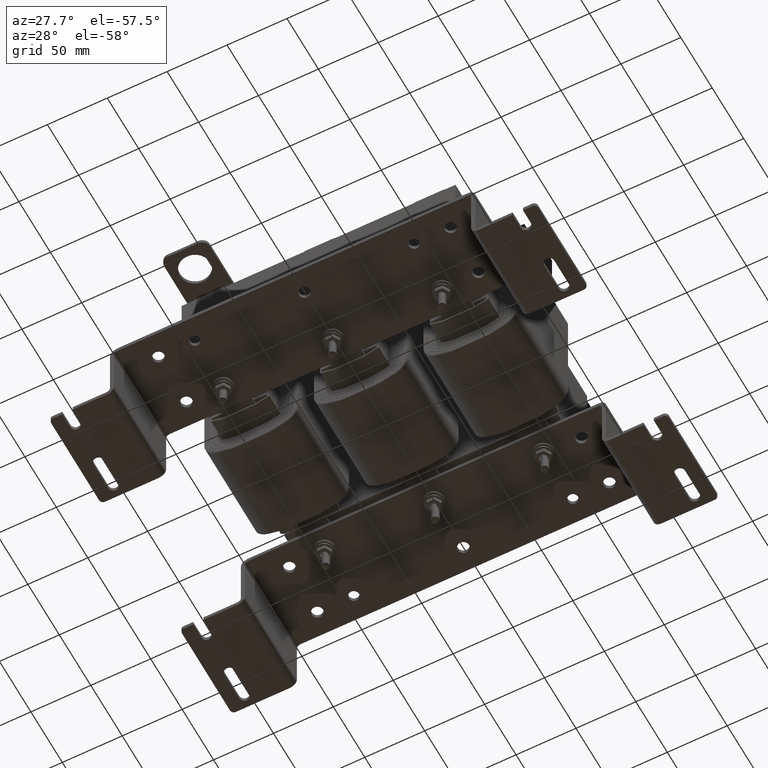
[diagram: clean part render]
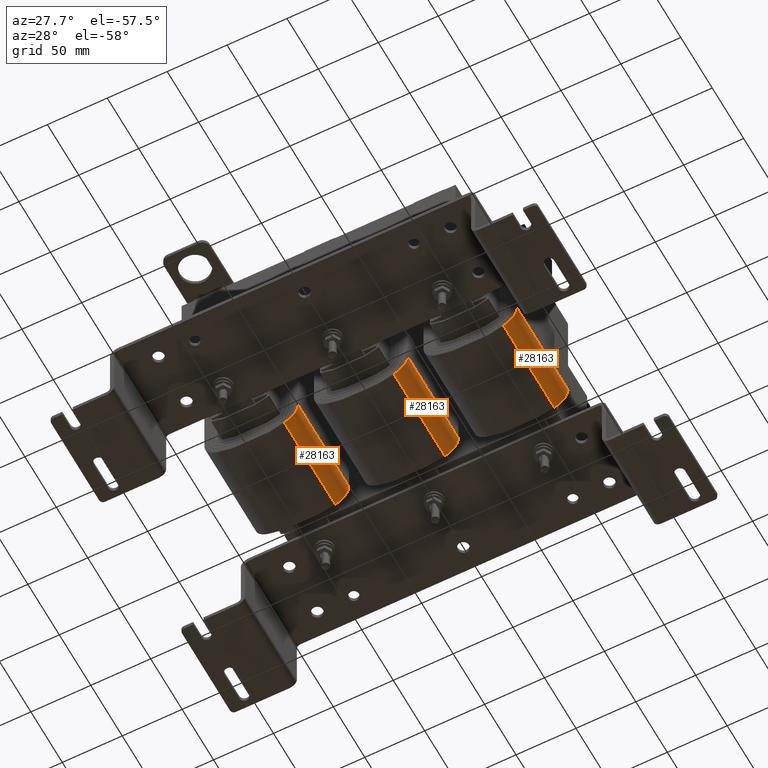
[diagram: same view with one multi-face feature highlighted, each face labeled with its STEP entity id]
A machine part, auxiliary view. The highlighted faces form ONE feature: a constant-radius fillet chain: 3 tangent blend faces with common blend radius 16.256 mm. The faces share edges in the B-rep.
Their STEP definitions:
[1] entity #28163 (Cylinder):
#3297=FACE_OUTER_BOUND('',#4916,.T.);
#4916=EDGE_LOOP('',(#26076,#26077,#26078,#26079));
#7627=LINE('',#49428,#10346);
#7628=LINE('',#49434,#10347);
#10346=VECTOR('',#38134,0.393700787401575);
#10347=VECTOR('',#38141,0.393700787401575);
#11319=CIRCLE('',#30842,0.640000000003839);
#11320=CIRCLE('',#30843,0.640000000003839);
#13993=VERTEX_POINT('',#49424);
#13994=VERTEX_POINT('',#49426);
#13995=VERTEX_POINT('',#49430);
#13996=VERTEX_POINT('',#49432);
#18041=EDGE_CURVE('',#13993,#13994,#7627,.T.);
#18042=EDGE_CURVE('',#13995,#13993,#11319,.T.);
#18043=EDGE_CURVE('',#13996,#13994,#11320,.T.);
#18044=EDGE_CURVE('',#13995,#13996,#7628,.T.);
#26076=ORIENTED_EDGE('',*,*,#18042,.T.);
#26077=ORIENTED_EDGE('',*,*,#18041,.T.);
#26078=ORIENTED_EDGE('',*,*,#18043,.F.);
#26079=ORIENTED_EDGE('',*,*,#18044,.F.);
#26689=CYLINDRICAL_SURFACE('',#30841,0.640000000003839);
#28163=ADVANCED_FACE('',(#3297),#26689,.T.);
#30841=AXIS2_PLACEMENT_3D('',#49429,#38135,#38136);
#30842=AXIS2_PLACEMENT_3D('',#49431,#38137,#38138);
#30843=AXIS2_PLACEMENT_3D('',#49433,#38139,#38140);
#38134=DIRECTION('',(0.,0.,1.));
#38135=DIRECTION('center_axis',(0.,0.,1.));
#38136=DIRECTION('ref_axis',(-0.296585781850925,0.955006216735721,0.));
#38137=DIRECTION('center_axis',(0.,0.,1.));
#38138=DIRECTION('ref_axis',(-0.296585781850925,0.955006216735721,0.));
#38139=DIRECTION('center_axis',(0.,0.,1.));
#38140=DIRECTION('ref_axis',(-0.296585781850925,0.955006216735721,0.));
#38141=DIRECTION('',(0.,0.,1.));
#49424=CARTESIAN_POINT('',(-0.640000000018059,3.49999999999404,0.));
#49426=CARTESIAN_POINT('',(-0.640000000018059,3.49999999999404,3.185));
#49428=CARTESIAN_POINT('',(-0.640000000018059,3.49999999999404,0.));
#49429=CARTESIAN_POINT('Origin',(-6.82942329110511E-12,3.49999999999442,
0.));
#49430=CARTESIAN_POINT('',(-0.189814900395719,4.11120397871912,0.));
#49431=CARTESIAN_POINT('Origin',(-6.82942329110511E-12,3.49999999999442,
0.));
#49432=CARTESIAN_POINT('',(-0.189814900395719,4.11120397871912,3.185));
#49433=CARTESIAN_POINT('Origin',(-6.82942329110511E-12,3.49999999999442,
3.185));
#49434=CARTESIAN_POINT('',(-0.189814900395719,4.11120397871912,0.));
[2] entity #28163 (Cylinder):
#3297=FACE_OUTER_BOUND('',#4916,.T.);
#4916=EDGE_LOOP('',(#26076,#26077,#26078,#26079));
#7627=LINE('',#49428,#10346);
#7628=LINE('',#49434,#10347);
#10346=VECTOR('',#38134,0.393700787401575);
#10347=VECTOR('',#38141,0.393700787401575);
#11319=CIRCLE('',#30842,0.640000000003839);
#11320=CIRCLE('',#30843,0.640000000003839);
#13993=VERTEX_POINT('',#49424);
#13994=VERTEX_POINT('',#49426);
#13995=VERTEX_POINT('',#49430);
#13996=VERTEX_POINT('',#49432);
#18041=EDGE_CURVE('',#13993,#13994,#7627,.T.);
#18042=EDGE_CURVE('',#13995,#13993,#11319,.T.);
#18043=EDGE_CURVE('',#13996,#13994,#11320,.T.);
#18044=EDGE_CURVE('',#13995,#13996,#7628,.T.);
#26076=ORIENTED_EDGE('',*,*,#18042,.T.);
#26077=ORIENTED_EDGE('',*,*,#18041,.T.);
#26078=ORIENTED_EDGE('',*,*,#18043,.F.);
#26079=ORIENTED_EDGE('',*,*,#18044,.F.);
#26689=CYLINDRICAL_SURFACE('',#30841,0.640000000003839);
#28163=ADVANCED_FACE('',(#3297),#26689,.T.);
#30841=AXIS2_PLACEMENT_3D('',#49429,#38135,#38136);
#30842=AXIS2_PLACEMENT_3D('',#49431,#38137,#38138);
#30843=AXIS2_PLACEMENT_3D('',#49433,#38139,#38140);
#38134=DIRECTION('',(0.,0.,1.));
#38135=DIRECTION('center_axis',(0.,0.,1.));
#38136=DIRECTION('ref_axis',(-0.296585781850925,0.955006216735721,0.));
#38137=DIRECTION('center_axis',(0.,0.,1.));
#38138=DIRECTION('ref_axis',(-0.296585781850925,0.955006216735721,0.));
#38139=DIRECTION('center_axis',(0.,0.,1.));
#38140=DIRECTION('ref_axis',(-0.296585781850925,0.955006216735721,0.));
#38141=DIRECTION('',(0.,0.,1.));
#49424=CARTESIAN_POINT('',(-0.640000000018059,3.49999999999404,0.));
#49426=CARTESIAN_POINT('',(-0.640000000018059,3.49999999999404,3.185));
#49428=CARTESIAN_POINT('',(-0.640000000018059,3.49999999999404,0.));
#49429=CARTESIAN_POINT('Origin',(-6.82942329110511E-12,3.49999999999442,
0.));
#49430=CARTESIAN_POINT('',(-0.189814900395719,4.11120397871912,0.));
#49431=CARTESIAN_POINT('Origin',(-6.82942329110511E-12,3.49999999999442,
0.));
#49432=CARTESIAN_POINT('',(-0.189814900395719,4.11120397871912,3.185));
#49433=CARTESIAN_POINT('Origin',(-6.82942329110511E-12,3.49999999999442,
3.185));
#49434=CARTESIAN_POINT('',(-0.189814900395719,4.11120397871912,0.));
[3] entity #28163 (Cylinder):
#3297=FACE_OUTER_BOUND('',#4916,.T.);
#4916=EDGE_LOOP('',(#26076,#26077,#26078,#26079));
#7627=LINE('',#49428,#10346);
#7628=LINE('',#49434,#10347);
#10346=VECTOR('',#38134,0.393700787401575);
#10347=VECTOR('',#38141,0.393700787401575);
#11319=CIRCLE('',#30842,0.640000000003839);
#11320=CIRCLE('',#30843,0.640000000003839);
#13993=VERTEX_POINT('',#49424);
#13994=VERTEX_POINT('',#49426);
#13995=VERTEX_POINT('',#49430);
#13996=VERTEX_POINT('',#49432);
#18041=EDGE_CURVE('',#13993,#13994,#7627,.T.);
#18042=EDGE_CURVE('',#13995,#13993,#11319,.T.);
#18043=EDGE_CURVE('',#13996,#13994,#11320,.T.);
#18044=EDGE_CURVE('',#13995,#13996,#7628,.T.);
#26076=ORIENTED_EDGE('',*,*,#18042,.T.);
#26077=ORIENTED_EDGE('',*,*,#18041,.T.);
#26078=ORIENTED_EDGE('',*,*,#18043,.F.);
#26079=ORIENTED_EDGE('',*,*,#18044,.F.);
#26689=CYLINDRICAL_SURFACE('',#30841,0.640000000003839);
#28163=ADVANCED_FACE('',(#3297),#26689,.T.);
#30841=AXIS2_PLACEMENT_3D('',#49429,#38135,#38136);
#30842=AXIS2_PLACEMENT_3D('',#49431,#38137,#38138);
#30843=AXIS2_PLACEMENT_3D('',#49433,#38139,#38140);
#38134=DIRECTION('',(0.,0.,1.));
#38135=DIRECTION('center_axis',(0.,0.,1.));
#38136=DIRECTION('ref_axis',(-0.296585781850925,0.955006216735721,0.));
#38137=DIRECTION('center_axis',(0.,0.,1.));
#38138=DIRECTION('ref_axis',(-0.296585781850925,0.955006216735721,0.));
#38139=DIRECTION('center_axis',(0.,0.,1.));
#38140=DIRECTION('ref_axis',(-0.296585781850925,0.955006216735721,0.));
#38141=DIRECTION('',(0.,0.,1.));
#49424=CARTESIAN_POINT('',(-0.640000000018059,3.49999999999404,0.));
#49426=CARTESIAN_POINT('',(-0.640000000018059,3.49999999999404,3.185));
#49428=CARTESIAN_POINT('',(-0.640000000018059,3.49999999999404,0.));
#49429=CARTESIAN_POINT('Origin',(-6.82942329110511E-12,3.49999999999442,
0.));
#49430=CARTESIAN_POINT('',(-0.189814900395719,4.11120397871912,0.));
#49431=CARTESIAN_POINT('Origin',(-6.82942329110511E-12,3.49999999999442,
0.));
#49432=CARTESIAN_POINT('',(-0.189814900395719,4.11120397871912,3.185));
#49433=CARTESIAN_POINT('Origin',(-6.82942329110511E-12,3.49999999999442,
3.185));
#49434=CARTESIAN_POINT('',(-0.189814900395719,4.11120397871912,0.));